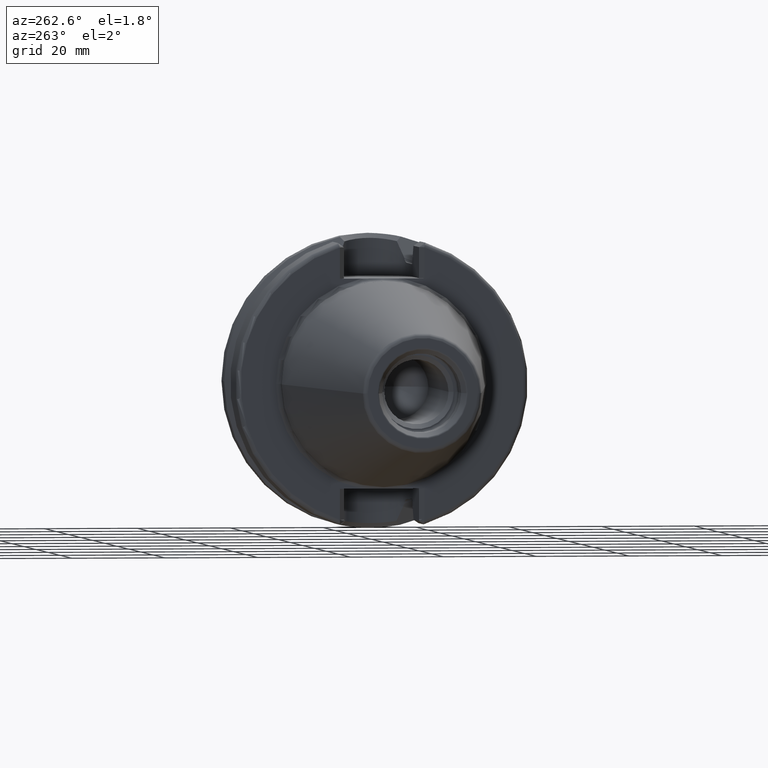
[diagram: clean part render]
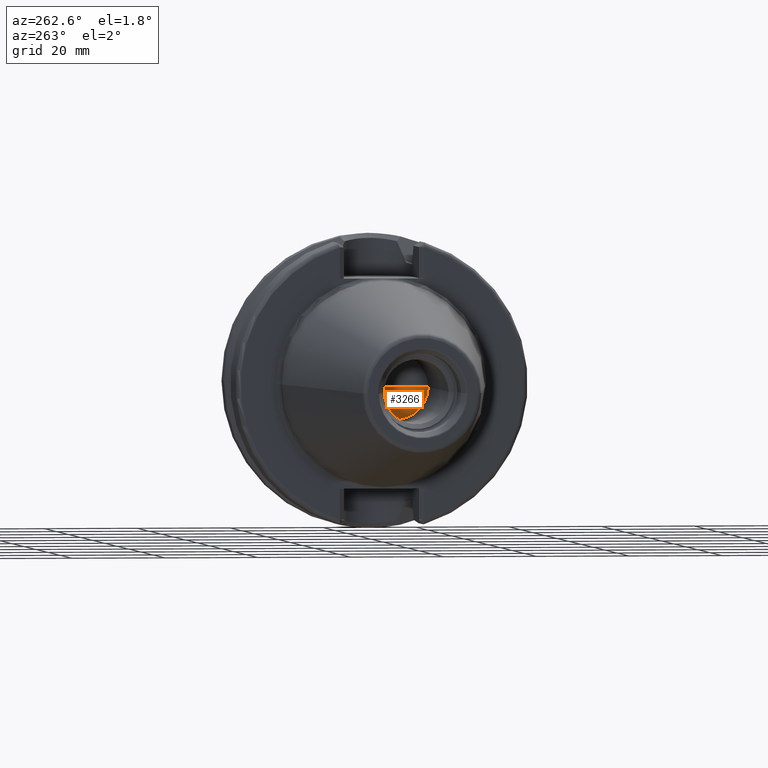
[diagram: same view with one face highlighted and labeled with its STEP entity id]
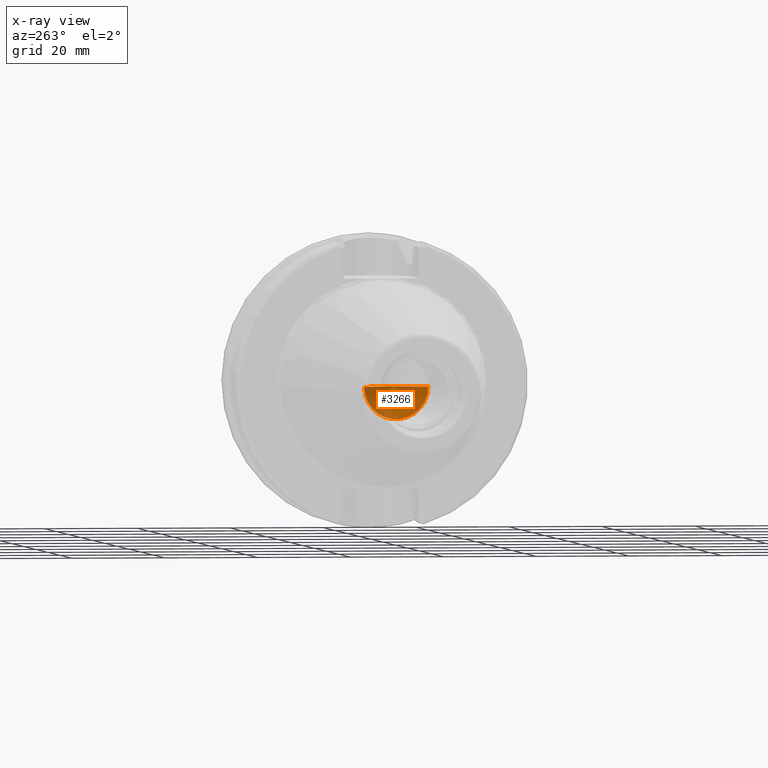
[diagram: x-ray of the same camera — body ghosted, the highlighted face saturated]
A machine part, auxiliary view. The second image highlights one B-rep face of the part: STEP entity #3266.
The next image is the same camera in x-ray: the body ghosted, the highlighted face saturated — about 34% of this face is hidden behind the body in this view.
In plain terms, the highlighted conical surface has half-angle 59 deg.
Its self-contained STEP definition (entity closure, byte-faithful):
#1272=CARTESIAN_POINT('',(-2.14E1,0.E0,0.E0));
#1273=DIRECTION('',(-1.E0,0.E0,0.E0));
#1274=DIRECTION('',(0.E0,1.E0,0.E0));
#1275=AXIS2_PLACEMENT_3D('',#1272,#1273,#1274);
#1286=DIRECTION('',(-5.150380749101E-1,8.571673007021E-1,0.E0));
#1287=VECTOR('',#1286,8.073103108730E0);
#1288=CARTESIAN_POINT('',(-1.724204451633E1,0.E0,0.E0));
#1289=LINE('',#1288,#1287);
#1290=DIRECTION('',(-5.150380749101E-1,-8.571673007021E-1,0.E0));
#1291=VECTOR('',#1290,8.073103108730E0);
#1292=CARTESIAN_POINT('',(-1.724204451633E1,0.E0,0.E0));
#1293=LINE('',#1292,#1291);
#1378=CARTESIAN_POINT('',(-1.724204451633E1,0.E0,0.E0));
#1379=CARTESIAN_POINT('',(-2.14E1,6.92E0,0.E0));
#1380=VERTEX_POINT('',#1378);
#1381=VERTEX_POINT('',#1379);
#1402=CARTESIAN_POINT('',(-2.14E1,-6.92E0,0.E0));
#1403=VERTEX_POINT('',#1402);
#3256=CARTESIAN_POINT('',(-1.932102225816E1,0.E0,0.E0));
#3257=DIRECTION('',(-1.E0,0.E0,0.E0));
#3258=DIRECTION('',(0.E0,1.E0,0.E0));
#3259=AXIS2_PLACEMENT_3D('',#3256,#3257,#3258);
#3260=CONICAL_SURFACE('',#3259,3.46E0,5.9E1);
#3261=ORIENTED_EDGE('',*,*,#3248,.F.);
#3262=ORIENTED_EDGE('',*,*,#3251,.T.);
#3263=ORIENTED_EDGE('',*,*,#3222,.F.);
#3264=EDGE_LOOP('',(#3261,#3262,#3263));
#3265=FACE_OUTER_BOUND('',#3264,.F.);
#3266=ADVANCED_FACE('',(#3265),#3260,.F.);
#1276=CIRCLE('',#1275,6.92E0);
#3222=EDGE_CURVE('',#1381,#1403,#1276,.T.);
#3248=EDGE_CURVE('',#1380,#1381,#1289,.T.);
#3251=EDGE_CURVE('',#1380,#1403,#1293,.T.);